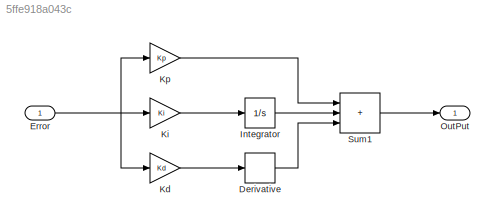
MODEL slx_5ffe918a043c
KIND model
CONFIG AbsTol = auto
CONFIG EnableMultiTasking = off
CONFIG FixedStep = auto
CONFIG MaxStep = auto
CONFIG MinStep = auto
CONFIG RelTol = 1e-3
CONFIG SampleTimeConstraint = Unconstrained
CONFIG SolverName = VariableStepAuto
CONFIG StartTime = 0.0
CONFIG StopTime = 10.0
WORKSPACE source: mxarray member
WORKSPACE Kd: Simulink.Parameter (value not decoded)
WORKSPACE Ki: Simulink.Parameter (value not decoded)
WORKSPACE Kp: Simulink.Parameter (value not decoded)
BLOCK [Derivative] Derivative
BLOCK [Inport] Error
  OutDataTypeStr = double
  PortDimensions = 1
  SampleTime = 0
  SamplingMode = Sample based
  SignalType = real
BLOCK [Integrator] Integrator
  Ports = [1, 1]
BLOCK [Gain] Kd
  Gain = Kd
BLOCK [Gain] Ki
  Gain = Ki
BLOCK [Gain] Kp
  Gain = Kp
BLOCK [Outport] OutPut
  OutDataTypeStr = double
  PortDimensions = 1
  SampleTime = 0
  SamplingMode = Sample based
  SignalType = real
BLOCK [Sum] Sum1
  IconShape = rectangular
  Inputs = +++
  Ports = [3, 1]
LINE Derivative:1 -> Sum1:3
NET Error:1 -> Kd:1, Ki:1, Kp:1
LINE Integrator:1 -> Sum1:2
LINE Kd:1 -> Derivative:1
LINE Ki:1 -> Integrator:1
LINE Kp:1 -> Sum1:1
LINE Sum1:1 -> OutPut:1
note: NET lines group one-source signal fan-out (src -> all destinations, sorted); 1:1 wires keep LINE
